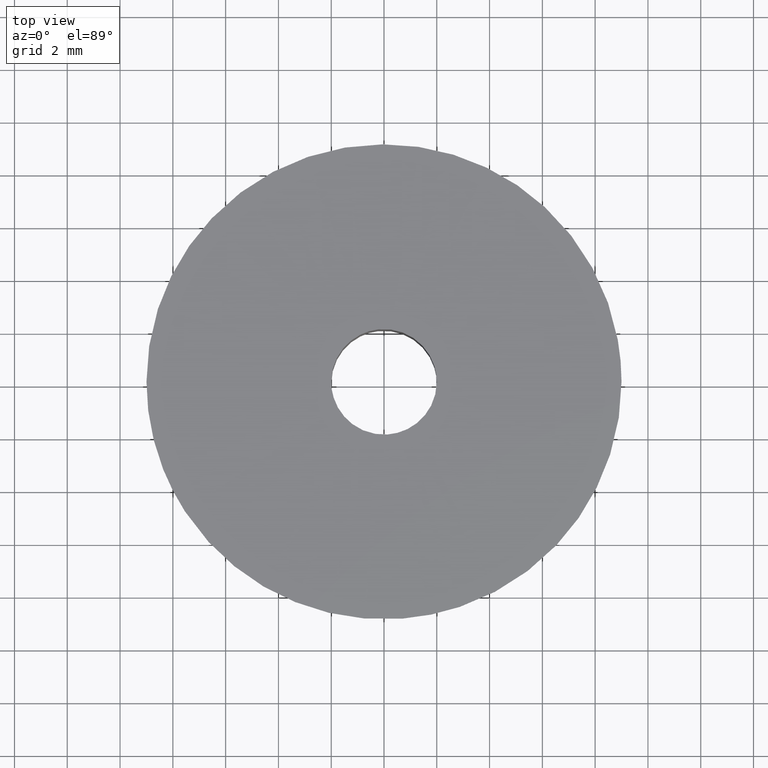
[diagram: clean part render]
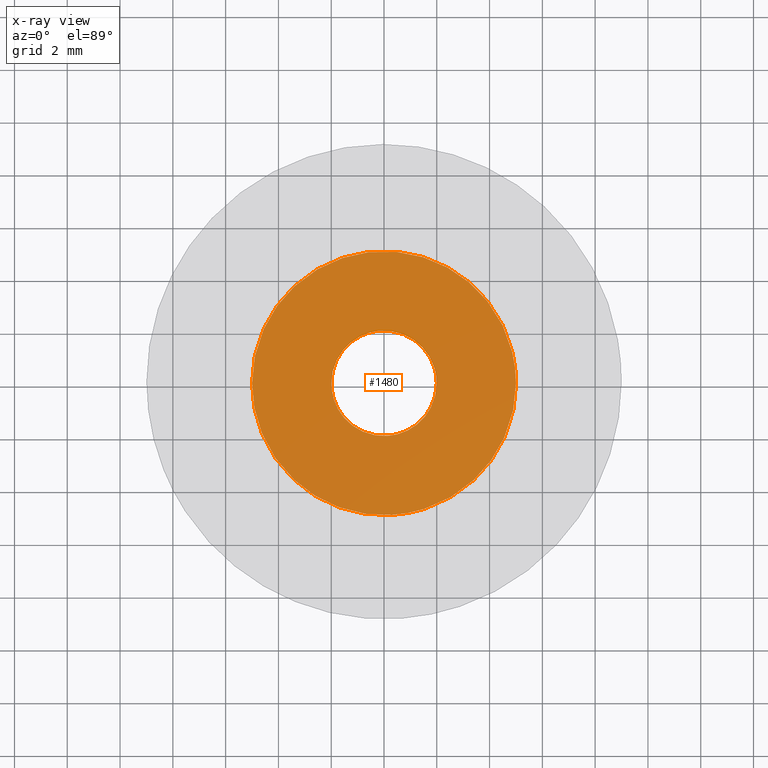
[diagram: x-ray — body ghosted, one internal face saturated and labeled with its STEP entity id]
A machine part, top view, then the same camera in x-ray: the body is ghosted and one INTERNAL B-rep face — a face not visible from any outside direction — is saturated and labeled: STEP entity #1480.
In plain terms, the highlighted face is a freeform B-spline surface patch.
Its self-contained STEP definition (entity closure, byte-faithful):
#940=CARTESIAN_POINT('',(-0.236066518982172,1.986019284551835,7.800000000000000));
#941=VERTEX_POINT('',#940);
#947=CARTESIAN_POINT('',(2.0,0.0,7.800000000000000));
#948=VERTEX_POINT('',#947);
#949=CARTESIAN_POINT('',(-0.236066518982172,1.986019284551835,7.800000000000000));
#950=CARTESIAN_POINT('',(-0.118447253828965,2.0,7.800000000000000));
#951=CARTESIAN_POINT('',(0.0,2.0,7.800000000000000));
#952=CARTESIAN_POINT('',(2.000000000000000,2.000000000000000,7.800000000000001));
#953=CARTESIAN_POINT('',(2.0,0.0,7.800000000000000));
#961=(BOUNDED_CURVE()B_SPLINE_CURVE(2,(#949,#950,#951,#952,#953),.UNSPECIFIED.,.F.,.U.)B_SPLINE_CURVE_WITH_KNOTS((3,2,3),(0.229562639482005,0.250000000000000,0.500000000000000),.UNSPECIFIED.)CURVE()GEOMETRIC_REPRESENTATION_ITEM()RATIONAL_B_SPLINE_CURVE((0.956027079489002,0.976056142775333,1.0,0.707106781186548,1.0))REPRESENTATION_ITEM(''));
#962=EDGE_CURVE('',#941,#948,#961,.T.);
#964=CARTESIAN_POINT('',(0.122097079084357,-1.996269596842838,7.800000000000001));
#965=VERTEX_POINT('',#964);
#966=CARTESIAN_POINT('',(2.0,0.0,7.800000000000000));
#967=CARTESIAN_POINT('',(2.000000000000000,-1.881412133783725,7.799999999999998));
#968=CARTESIAN_POINT('',(0.122097079084357,-1.996269596842838,7.800000000000001));
#976=(BOUNDED_CURVE()B_SPLINE_CURVE(2,(#966,#967,#968),.UNSPECIFIED.,.F.,.U.)B_SPLINE_CURVE_WITH_KNOTS((3,3),(0.500000000000000,0.739332962239436),.UNSPECIFIED.)CURVE()GEOMETRIC_REPRESENTATION_ITEM()RATIONAL_B_SPLINE_CURVE((1.0,0.719603993286133,0.976072041667774))REPRESENTATION_ITEM(''));
#977=EDGE_CURVE('',#948,#965,#976,.T.);
#1051=CARTESIAN_POINT('',(-2.0,0.0,7.800000000000000));
#1052=VERTEX_POINT('',#1051);
#1053=CARTESIAN_POINT('',(0.122097079084357,-1.996269596842838,7.800000000000001));
#1054=CARTESIAN_POINT('',(0.061105526611862,-2.000000000000000,7.800000000000000));
#1055=CARTESIAN_POINT('',(0.0,-2.0,7.800000000000000));
#1056=CARTESIAN_POINT('',(-2.000000000000000,-2.000000000000000,7.800000000000001));
#1057=CARTESIAN_POINT('',(-2.0,0.0,7.800000000000000));
#1065=(BOUNDED_CURVE()B_SPLINE_CURVE(2,(#1053,#1054,#1055,#1056,#1057),.UNSPECIFIED.,.F.,.U.)B_SPLINE_CURVE_WITH_KNOTS((3,2,3),(0.739332962239437,0.750000000000000,1.0),.UNSPECIFIED.)CURVE()GEOMETRIC_REPRESENTATION_ITEM()RATIONAL_B_SPLINE_CURVE((0.976072041667776,0.987502787900416,1.0,0.707106781186548,1.0))REPRESENTATION_ITEM(''));
#1066=EDGE_CURVE('',#965,#1052,#1065,.T.);
#1068=CARTESIAN_POINT('',(-2.0,0.0,7.800000000000000));
#1069=CARTESIAN_POINT('',(-2.000000000000000,1.776350808612528,7.799999999999999));
#1070=CARTESIAN_POINT('',(-0.236066518982172,1.986019284551835,7.800000000000000));
#1078=(BOUNDED_CURVE()B_SPLINE_CURVE(2,(#1068,#1069,#1070),.UNSPECIFIED.,.F.,.U.)B_SPLINE_CURVE_WITH_KNOTS((3,3),(0.0,0.229562639482005),.UNSPECIFIED.)CURVE()GEOMETRIC_REPRESENTATION_ITEM()RATIONAL_B_SPLINE_CURVE((1.0,0.731050638411214,0.956027079489002))REPRESENTATION_ITEM(''));
#1079=EDGE_CURVE('',#1052,#941,#1078,.T.);
#1107=CARTESIAN_POINT('',(-0.590169455614432,4.965047835988770,7.800000000000034));
#1108=VERTEX_POINT('',#1107);
#1109=CARTESIAN_POINT('',(5.0,0.0,7.800000000000000));
#1110=VERTEX_POINT('',#1109);
#1111=CARTESIAN_POINT('',(-0.590169455614432,4.965047835988770,7.800000000000034));
#1112=CARTESIAN_POINT('',(-0.296119730345424,4.999999999999999,7.800000000000000));
#1113=CARTESIAN_POINT('',(0.0,5.0,7.800000000000000));
#1114=CARTESIAN_POINT('',(5.000000000000001,5.000000000000001,7.800000000000001));
#1115=CARTESIAN_POINT('',(5.0,0.0,7.800000000000000));
#1123=(BOUNDED_CURVE()B_SPLINE_CURVE(2,(#1111,#1112,#1113,#1114,#1115),.UNSPECIFIED.,.F.,.U.)B_SPLINE_CURVE_WITH_KNOTS((3,2,3),(0.229562531982699,0.250000000000000,0.500000000000000),.UNSPECIFIED.)CURVE()GEOMETRIC_REPRESENTATION_ITEM()RATIONAL_B_SPLINE_CURVE((0.956026868785737,0.976056016832063,1.0,0.707106781186548,1.0))REPRESENTATION_ITEM(''));
#1124=EDGE_CURVE('',#1108,#1110,#1123,.T.);
#1165=CARTESIAN_POINT('',(0.305237013104272,-4.990674339786032,7.799999999999857));
#1166=VERTEX_POINT('',#1165);
#1172=CARTESIAN_POINT('',(5.0,0.0,7.800000000000000));
#1173=CARTESIAN_POINT('',(4.999999999999999,-4.703535702044791,7.800000000000000));
#1174=CARTESIAN_POINT('',(0.305237013104272,-4.990674339786032,7.799999999999857));
#1182=(BOUNDED_CURVE()B_SPLINE_CURVE(2,(#1172,#1173,#1174),.UNSPECIFIED.,.F.,.U.)B_SPLINE_CURVE_WITH_KNOTS((3,3),(0.500000000000000,0.739333158779441),.UNSPECIFIED.)CURVE()GEOMETRIC_REPRESENTATION_ITEM()RATIONAL_B_SPLINE_CURVE((1.0,0.719603763025194,0.976072462890779))REPRESENTATION_ITEM(''));
#1183=EDGE_CURVE('',#1110,#1166,#1182,.T.);
#1206=CARTESIAN_POINT('',(-5.0,0.0,7.800000000000000));
#1207=VERTEX_POINT('',#1206);
#1208=CARTESIAN_POINT('',(-5.0,0.0,7.800000000000000));
#1209=CARTESIAN_POINT('',(-5.0,4.440874176902134,7.800000000000000));
#1210=CARTESIAN_POINT('',(-0.590169455614432,4.965047835988770,7.800000000000034));
#1218=(BOUNDED_CURVE()B_SPLINE_CURVE(2,(#1208,#1209,#1210),.UNSPECIFIED.,.F.,.U.)B_SPLINE_CURVE_WITH_KNOTS((3,3),(0.0,0.229562531982699),.UNSPECIFIED.)CURVE()GEOMETRIC_REPRESENTATION_ITEM()RATIONAL_B_SPLINE_CURVE((1.0,0.731050764354485,0.956026868785737))REPRESENTATION_ITEM(''));
#1219=EDGE_CURVE('',#1207,#1108,#1218,.T.);
#1221=CARTESIAN_POINT('',(0.305237013104272,-4.990674339786032,7.799999999999857));
#1222=CARTESIAN_POINT('',(0.152760966238695,-5.0,7.800000000000000));
#1223=CARTESIAN_POINT('',(0.0,-5.0,7.800000000000000));
#1224=CARTESIAN_POINT('',(-5.000000000000001,-5.000000000000001,7.800000000000001));
#1225=CARTESIAN_POINT('',(-5.0,0.0,7.800000000000000));
#1233=(BOUNDED_CURVE()B_SPLINE_CURVE(2,(#1221,#1222,#1223,#1224,#1225),.UNSPECIFIED.,.F.,.U.)B_SPLINE_CURVE_WITH_KNOTS((3,2,3),(0.739333158779441,0.750000000000000,1.0),.UNSPECIFIED.)CURVE()GEOMETRIC_REPRESENTATION_ITEM()RATIONAL_B_SPLINE_CURVE((0.976072462890779,0.987503018161353,1.0,0.707106781186548,1.0))REPRESENTATION_ITEM(''));
#1234=EDGE_CURVE('',#1166,#1207,#1233,.T.);
#1463=CARTESIAN_POINT('',(-5.499499980618060,-5.499378285062307,7.800000000000000));
#1464=CARTESIAN_POINT('',(5.499500248838961,-5.499378285062307,7.800000000000000));
#1465=CARTESIAN_POINT('',(-5.499499980618060,5.499409041059009,7.800000000000000));
#1466=CARTESIAN_POINT('',(5.499500248838961,5.499409041059009,7.800000000000000));
#1467=B_SPLINE_SURFACE_WITH_KNOTS('',1,1,((#1463,#1465),(#1464,#1466)),.UNSPECIFIED.,.F.,.F.,.U.,(2,2),(2,2),(0.0,10.999000229457019),(0.0,10.998787326121320),.UNSPECIFIED.);
#1468=ORIENTED_EDGE('',*,*,#1219,.T.);
#1469=ORIENTED_EDGE('',*,*,#1124,.T.);
#1470=ORIENTED_EDGE('',*,*,#1183,.T.);
#1471=ORIENTED_EDGE('',*,*,#1234,.T.);
#1472=EDGE_LOOP('',(#1468,#1469,#1470,#1471));
#1473=FACE_OUTER_BOUND('',#1472,.T.);
#1474=ORIENTED_EDGE('',*,*,#977,.F.);
#1475=ORIENTED_EDGE('',*,*,#962,.F.);
#1476=ORIENTED_EDGE('',*,*,#1079,.F.);
#1477=ORIENTED_EDGE('',*,*,#1066,.F.);
#1478=EDGE_LOOP('',(#1474,#1475,#1476,#1477));
#1479=FACE_BOUND('',#1478,.T.);
#1480=ADVANCED_FACE('',(#1473,#1479),#1467,.F.);